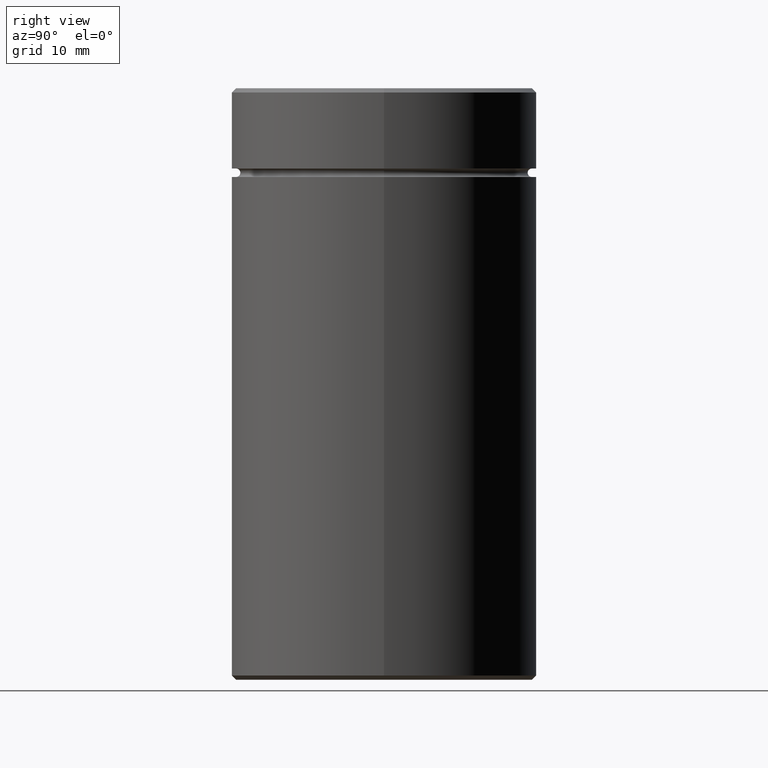
[diagram: clean part render]
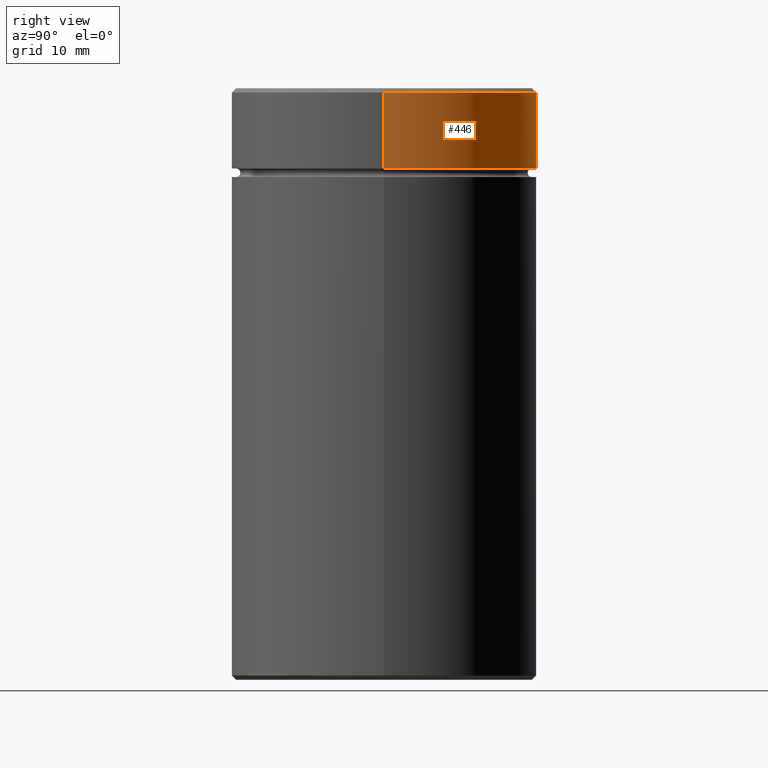
[diagram: same view with one face highlighted and labeled with its STEP entity id]
A machine part, right view. The second image highlights one B-rep face of the part: STEP entity #446.
In plain terms, the highlighted cylindrical surface (partial cylindrical patch) has radius 18 mm, axis along (-0, -0, 1).
Its self-contained STEP definition (entity closure, byte-faithful):
#12 = CARTESIAN_POINT ( 'NONE',  ( -18.00000000000000000, 2.204364238465235428E-15, -0.5000000000000177636 ) ) ;
#15 = CIRCLE ( 'NONE', #352, 18.00000000000000000 ) ;
#30 = VECTOR ( 'NONE', #158, 1000.000000000000000 ) ;
#42 = CARTESIAN_POINT ( 'NONE',  ( 0.000000000000000000, 0.000000000000000000, -9.500000000000000000 ) ) ;
#50 = DIRECTION ( 'NONE',  ( -0.000000000000000000, -0.000000000000000000, 1.000000000000000000 ) ) ;
#52 = CARTESIAN_POINT ( 'NONE',  ( 0.000000000000000000, 0.000000000000000000, -0.5000000000000177636 ) ) ;
#59 = DIRECTION ( 'NONE',  ( 1.000000000000000000, 0.000000000000000000, 0.000000000000000000 ) ) ;
#94 = EDGE_LOOP ( 'NONE', ( #372, #501, #497, #503 ) ) ;
#100 = AXIS2_PLACEMENT_3D ( 'NONE', #123, #568, #461 ) ;
#123 = CARTESIAN_POINT ( 'NONE',  ( 0.000000000000000000, 0.000000000000000000, 0.000000000000000000 ) ) ;
#129 = DIRECTION ( 'NONE',  ( -0.000000000000000000, -0.000000000000000000, 1.000000000000000000 ) ) ;
#134 = VERTEX_POINT ( 'NONE', #373 ) ;
#136 = EDGE_CURVE ( 'NONE', #391, #134, #15, .T. ) ;
#158 = DIRECTION ( 'NONE',  ( -0.000000000000000000, -0.000000000000000000, 1.000000000000000000 ) ) ;
#207 = DIRECTION ( 'NONE',  ( 0.000000000000000000, 0.000000000000000000, -1.000000000000000000 ) ) ;
#214 = CYLINDRICAL_SURFACE ( 'NONE', #100, 18.00000000000000000 ) ;
#230 = AXIS2_PLACEMENT_3D ( 'NONE', #52, #207, #251 ) ;
#232 = EDGE_CURVE ( 'NONE', #508, #484, #485, .T. ) ;
#251 = DIRECTION ( 'NONE',  ( 1.000000000000000000, 0.000000000000000000, 0.000000000000000000 ) ) ;
#281 = VECTOR ( 'NONE', #50, 1000.000000000000000 ) ;
#287 = CARTESIAN_POINT ( 'NONE',  ( 18.00000000000000000, 0.000000000000000000, -0.5000000000000177636 ) ) ;
#352 = AXIS2_PLACEMENT_3D ( 'NONE', #42, #129, #59 ) ;
#363 = EDGE_CURVE ( 'NONE', #134, #508, #562, .T. ) ;
#372 = ORIENTED_EDGE ( 'NONE', *, *, #136, .T. ) ;
#373 = CARTESIAN_POINT ( 'NONE',  ( -18.00000000000000000, 2.204364238465235428E-15, -9.500000000000000000 ) ) ;
#375 = CARTESIAN_POINT ( 'NONE',  ( -18.00000000000000000, 2.204364238465235428E-15, 0.000000000000000000 ) ) ;
#378 = FACE_OUTER_BOUND ( 'NONE', #94, .T. ) ;
#386 = CARTESIAN_POINT ( 'NONE',  ( 18.00000000000000000, 0.000000000000000000, 0.000000000000000000 ) ) ;
#391 = VERTEX_POINT ( 'NONE', #532 ) ;
#432 = LINE ( 'NONE', #386, #281 ) ;
#446 = ADVANCED_FACE ( 'NONE', ( #378 ), #214, .T. ) ;
#461 = DIRECTION ( 'NONE',  ( 1.000000000000000000, 0.000000000000000000, 0.000000000000000000 ) ) ;
#484 = VERTEX_POINT ( 'NONE', #287 ) ;
#485 = CIRCLE ( 'NONE', #230, 18.00000000000000000 ) ;
#497 = ORIENTED_EDGE ( 'NONE', *, *, #232, .T. ) ;
#501 = ORIENTED_EDGE ( 'NONE', *, *, #363, .T. ) ;
#503 = ORIENTED_EDGE ( 'NONE', *, *, #540, .F. ) ;
#508 = VERTEX_POINT ( 'NONE', #12 ) ;
#532 = CARTESIAN_POINT ( 'NONE',  ( 18.00000000000000000, 0.000000000000000000, -9.500000000000000000 ) ) ;
#540 = EDGE_CURVE ( 'NONE', #391, #484, #432, .T. ) ;
#562 = LINE ( 'NONE', #375, #30 ) ;
#568 = DIRECTION ( 'NONE',  ( -0.000000000000000000, -0.000000000000000000, 1.000000000000000000 ) ) ;